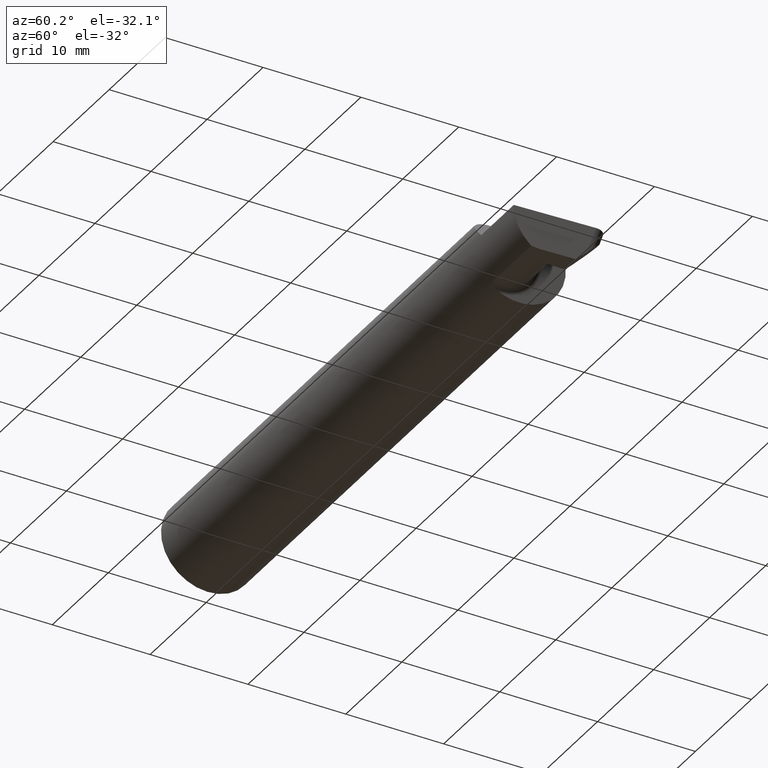
[diagram: clean part render]
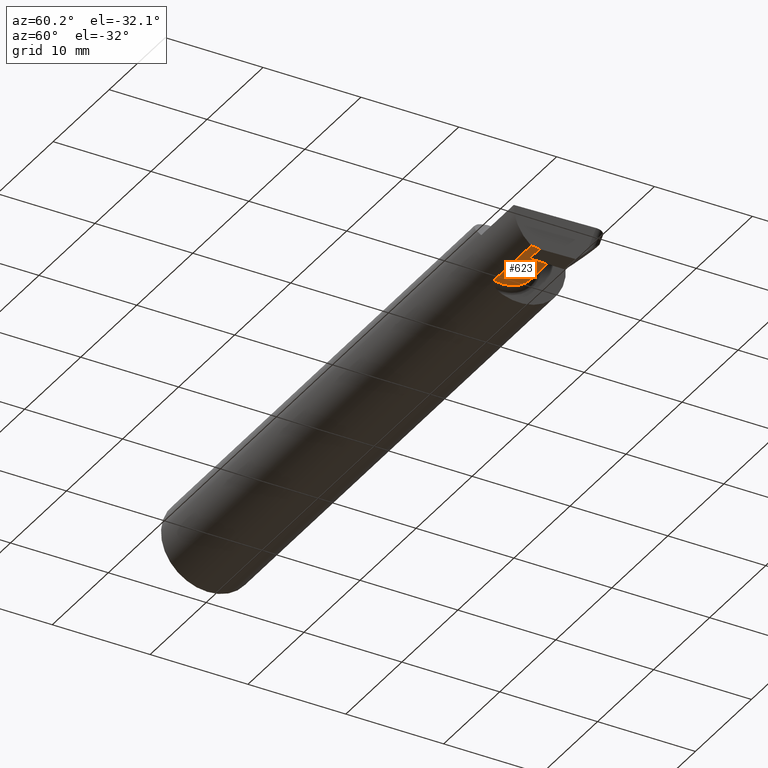
[diagram: same view with one face highlighted and labeled with its STEP entity id]
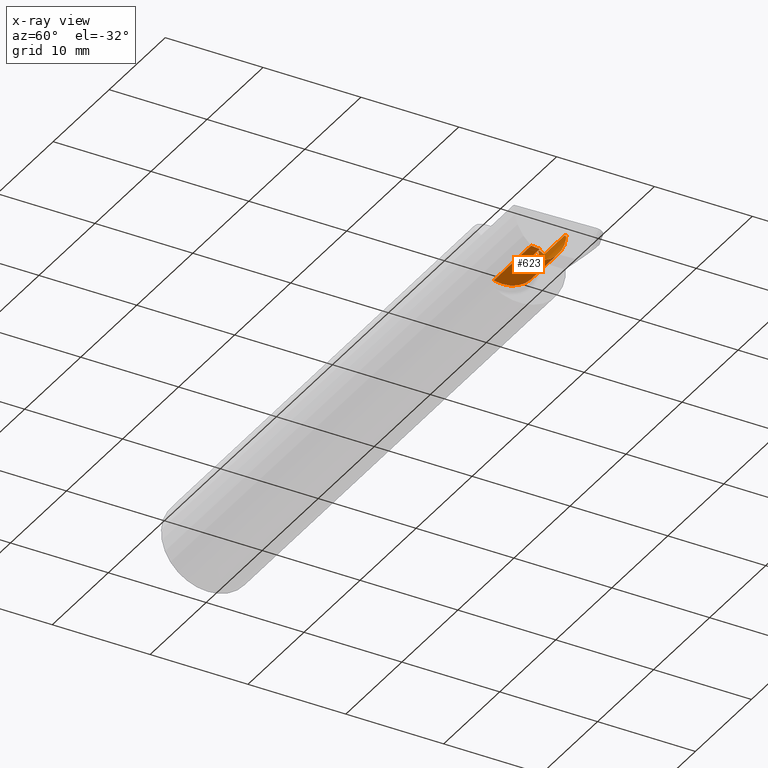
[diagram: x-ray of the same camera — body ghosted, the highlighted face saturated]
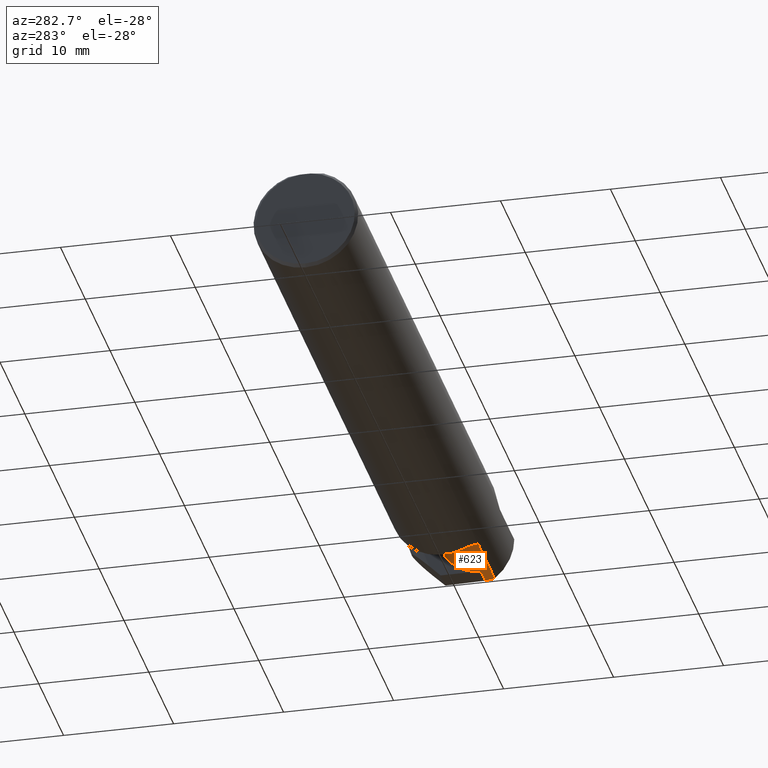
[diagram: same view with one face highlighted and labeled with its STEP entity id]
A machine part, auxiliary view. The second image highlights one B-rep face of the part: STEP entity #623.
The next image is the same camera in x-ray: the body ghosted, the highlighted face saturated — about 1% of this face is hidden behind the body in this view.
A second angle (auxiliary view) of the same face is appended — the face is thin or edge-on in the first view.
In plain terms, the highlighted cylindrical surface (partial cylindrical patch) has radius 3.81 mm, axis along (-1, -0, -0).
Its self-contained STEP definition (entity closure, byte-faithful):
#9 = CARTESIAN_POINT ( 'NONE',  ( 2.488471823259917226, -0.1172600179964003730, -0.1461167706989304760 ) ) ;
#11 = CARTESIAN_POINT ( 'NONE',  ( 2.225000000000000089, 0.06250952145814828165, 0.03500000000000009354 ) ) ;
#18 = EDGE_CURVE ( 'NONE', #592, #421, #639, .T. ) ;
#28 = CARTESIAN_POINT ( 'NONE',  ( 2.200000000000000178, 0.06664999999999997315, 3.673940397442062580E-17 ) ) ;
#43 = DIRECTION ( 'NONE',  ( -1.000000000000000000, -6.448948547284692709E-16, -0.000000000000000000 ) ) ;
#44 = ORIENTED_EDGE ( 'NONE', *, *, #546, .F. ) ;
#48 = VERTEX_POINT ( 'NONE', #188 ) ;
#74 = VERTEX_POINT ( 'NONE', #131 ) ;
#78 = EDGE_LOOP ( 'NONE', ( #123, #316, #512, #377, #116, #256, #337, #44, #706 ) ) ;
#84 = AXIS2_PLACEMENT_3D ( 'NONE', #318, #481, #538 ) ;
#92 = CYLINDRICAL_SURFACE ( 'NONE', #156, 0.1500000000000001055 ) ;
#93 = CARTESIAN_POINT ( 'NONE',  ( 2.200000000000000178, 0.06655862405286426531, -0.005234924505377318293 ) ) ;
#97 = CARTESIAN_POINT ( 'NONE',  ( 2.405147528298442694, 0.06655862405286405714, -0.005234924505387532345 ) ) ;
#102 = LINE ( 'NONE', #93, #161 ) ;
#116 = ORIENTED_EDGE ( 'NONE', *, *, #189, .F. ) ;
#117 = EDGE_CURVE ( 'NONE', #409, #390, #102, .T. ) ;
#118 = CARTESIAN_POINT ( 'NONE',  ( 2.489189135516857831, -0.09477667630339313420, -0.1500000000000002165 ) ) ;
#123 = ORIENTED_EDGE ( 'NONE', *, *, #513, .T. ) ;
#131 = CARTESIAN_POINT ( 'NONE',  ( 2.225000000000000089, -0.1172600179964003730, -0.1461167706989306148 ) ) ;
#156 = AXIS2_PLACEMENT_3D ( 'NONE', #593, #656, #691 ) ;
#158 = CARTESIAN_POINT ( 'NONE',  ( 2.405177986947488300, 0.06658908270190934398, -0.003489949670258354463 ) ) ;
#161 = VECTOR ( 'NONE', #43, 39.37007874015748143 ) ;
#183 = CARTESIAN_POINT ( 'NONE',  ( 2.405147528298442694, 0.06655862405286405714, -0.005234924505387532345 ) ) ;
#188 = CARTESIAN_POINT ( 'NONE',  ( 2.489588163846105484, -0.08334999999999859188, -0.1500000000000000500 ) ) ;
#189 = EDGE_CURVE ( 'NONE', #390, #421, #396, .T. ) ;
#196 = VECTOR ( 'NONE', #237, 39.37007874015748143 ) ;
#220 = CARTESIAN_POINT ( 'NONE',  ( 2.489588163846105484, -0.08334999999999859188, -0.1500000000000000500 ) ) ;
#234 = VECTOR ( 'NONE', #437, 39.37007874015748143 ) ;
#237 = DIRECTION ( 'NONE',  ( 1.000000000000000000, 6.448948547284692709E-16, 0.000000000000000000 ) ) ;
#256 = ORIENTED_EDGE ( 'NONE', *, *, #117, .F. ) ;
#257 = LINE ( 'NONE', #380, #234 ) ;
#286 = CARTESIAN_POINT ( 'NONE',  ( 2.417117327835069940, -0.08334999999999997966, -0.1500000000000000777 ) ) ;
#288 = EDGE_CURVE ( 'NONE', #678, #48, #352, .T. ) ;
#292 = VERTEX_POINT ( 'NONE', #391 ) ;
#311 = CARTESIAN_POINT ( 'NONE',  ( 2.260000000000000231, 0.06664999999999991764, 2.939152317953647352E-17 ) ) ;
#316 = ORIENTED_EDGE ( 'NONE', *, *, #579, .F. ) ;
#318 = CARTESIAN_POINT ( 'NONE',  ( 2.225000000000000089, -0.08335000000000010456, 0.000000000000000000 ) ) ;
#320 = CARTESIAN_POINT ( 'NONE',  ( 2.405208445596533462, 0.06661954135095464469, -0.001744974835129177015 ) ) ;
#325 =( BOUNDED_CURVE ( )  B_SPLINE_CURVE ( 3, ( #286, #668, #665, #495 ),
 .UNSPECIFIED., .F., .F. ) 
 B_SPLINE_CURVE_WITH_KNOTS ( ( 4, 4 ),
 ( 3.159045946109700687, 4.694935687864655982 ),
 .UNSPECIFIED. ) 
 CURVE ( )  GEOMETRIC_REPRESENTATION_ITEM ( )  RATIONAL_B_SPLINE_CURVE ( ( 1.000000000000000000, 0.8128932002257800438, 0.8128932002257800438, 1.000000000000000000 ) ) 
 REPRESENTATION_ITEM ( '' )  );
#337 = ORIENTED_EDGE ( 'NONE', *, *, #663, .F. ) ;
#352 =( BOUNDED_CURVE ( )  B_SPLINE_CURVE ( 3, ( #9, #619, #118, #220 ),
 .UNSPECIFIED., .F., .T. ) 
 B_SPLINE_CURVE_WITH_KNOTS ( ( 4, 4 ),
 ( 0.8789888184544136784, 1.107026853503865427 ),
 .UNSPECIFIED. ) 
 CURVE ( )  GEOMETRIC_REPRESENTATION_ITEM ( )  RATIONAL_B_SPLINE_CURVE ( ( 1.000000000000000000, 0.9956712472009927595, 0.9956712472009927595, 1.000000000000000000 ) ) 
 REPRESENTATION_ITEM ( '' )  );
#377 = ORIENTED_EDGE ( 'NONE', *, *, #18, .T. ) ;
#380 = CARTESIAN_POINT ( 'NONE',  ( 2.733184360054363715, -0.08334999999999859188, -0.1500000000000000500 ) ) ;
#383 =( BOUNDED_CURVE ( )  B_SPLINE_CURVE ( 3, ( #11, #387, #503, #393 ),
 .UNSPECIFIED., .F., .F. ) 
 B_SPLINE_CURVE_WITH_KNOTS ( ( 4, 4 ),
 ( 1.335292090074097437, 1.570796326794897224 ),
 .UNSPECIFIED. ) 
 CURVE ( )  GEOMETRIC_REPRESENTATION_ITEM ( )  RATIONAL_B_SPLINE_CURVE ( ( 1.000000000000000000, 0.9953834841226971708, 0.9953834841226971708, 1.000000000000000000 ) ) 
 REPRESENTATION_ITEM ( '' )  );
#384 = CARTESIAN_POINT ( 'NONE',  ( 2.405238904245578624, 0.06664999999999991764, 0.000000000000000000 ) ) ;
#387 = CARTESIAN_POINT ( 'NONE',  ( 2.236476718690367793, 0.06526343940705725544, 0.02352328130963214636 ) ) ;
#390 = VERTEX_POINT ( 'NONE', #183 ) ;
#391 = CARTESIAN_POINT ( 'NONE',  ( 2.225000000000000089, 0.06250952145814828165, 0.03500000000000009354 ) ) ;
#393 = CARTESIAN_POINT ( 'NONE',  ( 2.260000000000000231, 0.06664999999999991764, 2.939152317953647352E-17 ) ) ;
#396 = B_SPLINE_CURVE_WITH_KNOTS ( 'NONE', 3,
 ( #97, #158, #320, #384 ),
 .UNSPECIFIED., .F., .F.,
 ( 4, 4 ),
 ( 0.000000000000000000, 1.000000000000000000 ),
 .UNSPECIFIED. ) ;
#404 = CIRCLE ( 'NONE', #84, 0.1500000000000001610 ) ;
#409 = VERTEX_POINT ( 'NONE', #683 ) ;
#421 = VERTEX_POINT ( 'NONE', #677 ) ;
#432 = DIRECTION ( 'NONE',  ( -1.000000000000000000, -6.448948547284692709E-16, -0.000000000000000000 ) ) ;
#437 = DIRECTION ( 'NONE',  ( -1.000000000000000000, -0.000000000000000000, -0.000000000000000000 ) ) ;
#441 = FACE_OUTER_BOUND ( 'NONE', #78, .T. ) ;
#481 = DIRECTION ( 'NONE',  ( -1.000000000000000000, -6.448948547284692709E-16, -0.000000000000000000 ) ) ;
#495 = CARTESIAN_POINT ( 'NONE',  ( 2.414454177608814867, 0.06655862405286415429, -0.005234924505383332580 ) ) ;
#503 = CARTESIAN_POINT ( 'NONE',  ( 2.248197494504676097, 0.06665000000000001479, 0.01180250549532441823 ) ) ;
#512 = ORIENTED_EDGE ( 'NONE', *, *, #643, .T. ) ;
#513 = EDGE_CURVE ( 'NONE', #678, #74, #531, .T. ) ;
#525 = VECTOR ( 'NONE', #432, 39.37007874015748143 ) ;
#531 = LINE ( 'NONE', #597, #525 ) ;
#538 = DIRECTION ( 'NONE',  ( 0.000000000000000000, -1.000000000000000000, 0.000000000000000000 ) ) ;
#544 = CARTESIAN_POINT ( 'NONE',  ( 2.417117327835069940, -0.08334999999999997966, -0.1500000000000000777 ) ) ;
#546 = EDGE_CURVE ( 'NONE', #48, #599, #257, .T. ) ;
#548 = CARTESIAN_POINT ( 'NONE',  ( 2.488471823259917226, -0.1172600179964003730, -0.1461167706989304760 ) ) ;
#579 = EDGE_CURVE ( 'NONE', #292, #74, #404, .T. ) ;
#592 = VERTEX_POINT ( 'NONE', #311 ) ;
#593 = CARTESIAN_POINT ( 'NONE',  ( 2.200000000000000178, -0.08335000000000011844, 0.000000000000000000 ) ) ;
#597 = CARTESIAN_POINT ( 'NONE',  ( 2.318402844999999601, -0.1172600179964004702, -0.1461167706989304760 ) ) ;
#599 = VERTEX_POINT ( 'NONE', #544 ) ;
#619 = CARTESIAN_POINT ( 'NONE',  ( 2.488815404197634251, -0.1061291577212402637, -0.1486999626928448281 ) ) ;
#623 = ADVANCED_FACE ( 'NONE', ( #441 ), #92, .T. ) ;
#639 = LINE ( 'NONE', #28, #196 ) ;
#643 = EDGE_CURVE ( 'NONE', #292, #592, #383, .T. ) ;
#656 = DIRECTION ( 'NONE',  ( -1.000000000000000000, -6.448948547284692709E-16, -0.000000000000000000 ) ) ;
#663 = EDGE_CURVE ( 'NONE', #599, #409, #325, .T. ) ;
#665 = CARTESIAN_POINT ( 'NONE',  ( 2.415998328610626800, 0.06357628547474568348, -0.09063792740366220790 ) ) ;
#668 = CARTESIAN_POINT ( 'NONE',  ( 2.417090374579074386, 0.002105059811797859240, -0.1500000000000001332 ) ) ;
#677 = CARTESIAN_POINT ( 'NONE',  ( 2.405238904245578624, 0.06664999999999991764, 0.000000000000000000 ) ) ;
#678 = VERTEX_POINT ( 'NONE', #548 ) ;
#683 = CARTESIAN_POINT ( 'NONE',  ( 2.414454177608814867, 0.06655862405286415429, -0.005234924505383332580 ) ) ;
#691 = DIRECTION ( 'NONE',  ( 0.000000000000000000, -1.000000000000000000, 0.000000000000000000 ) ) ;
#706 = ORIENTED_EDGE ( 'NONE', *, *, #288, .F. ) ;